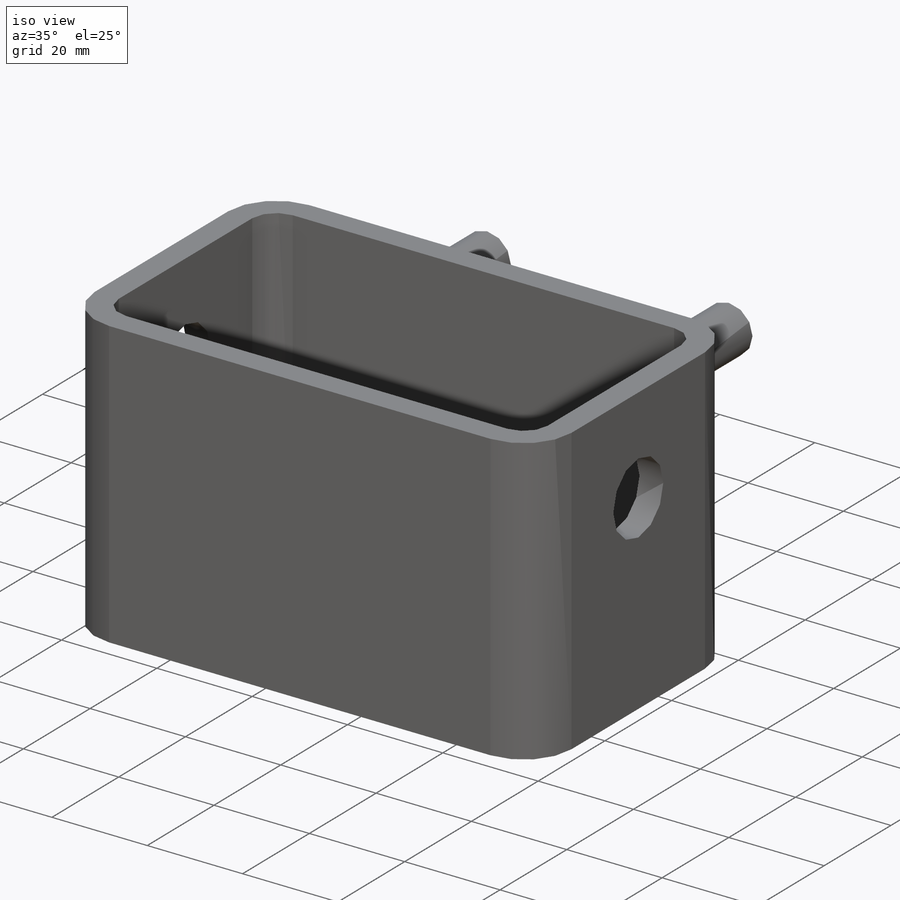
[diagram: iso view]
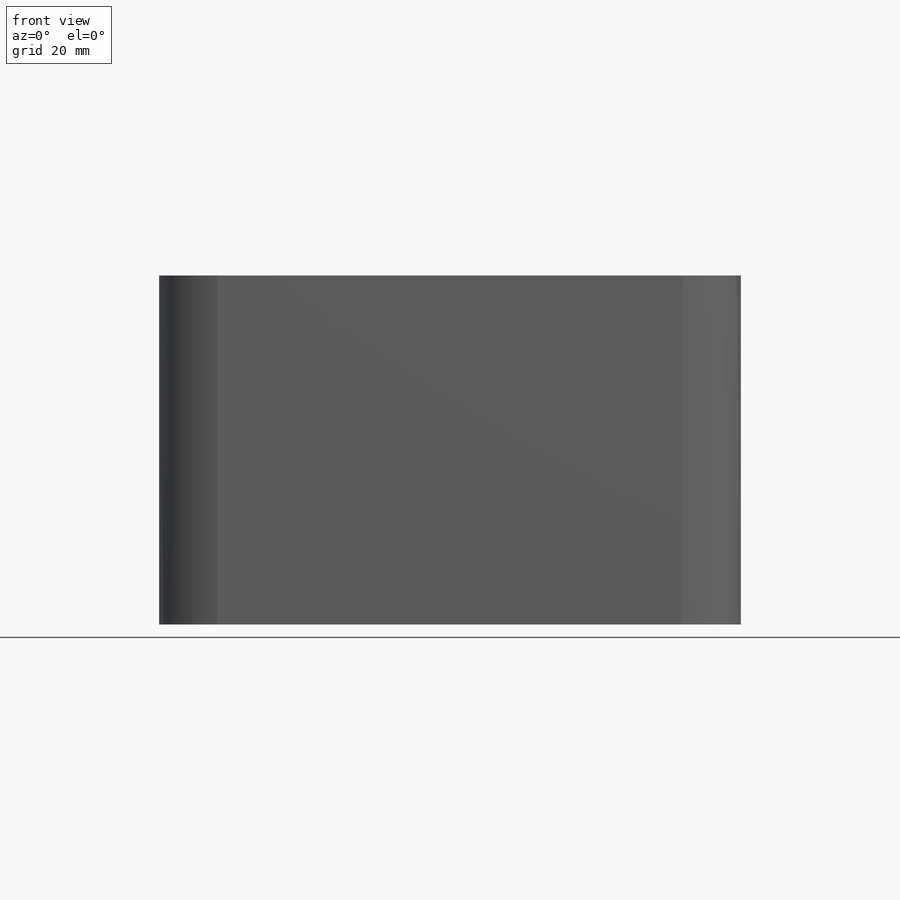
[diagram: front view]
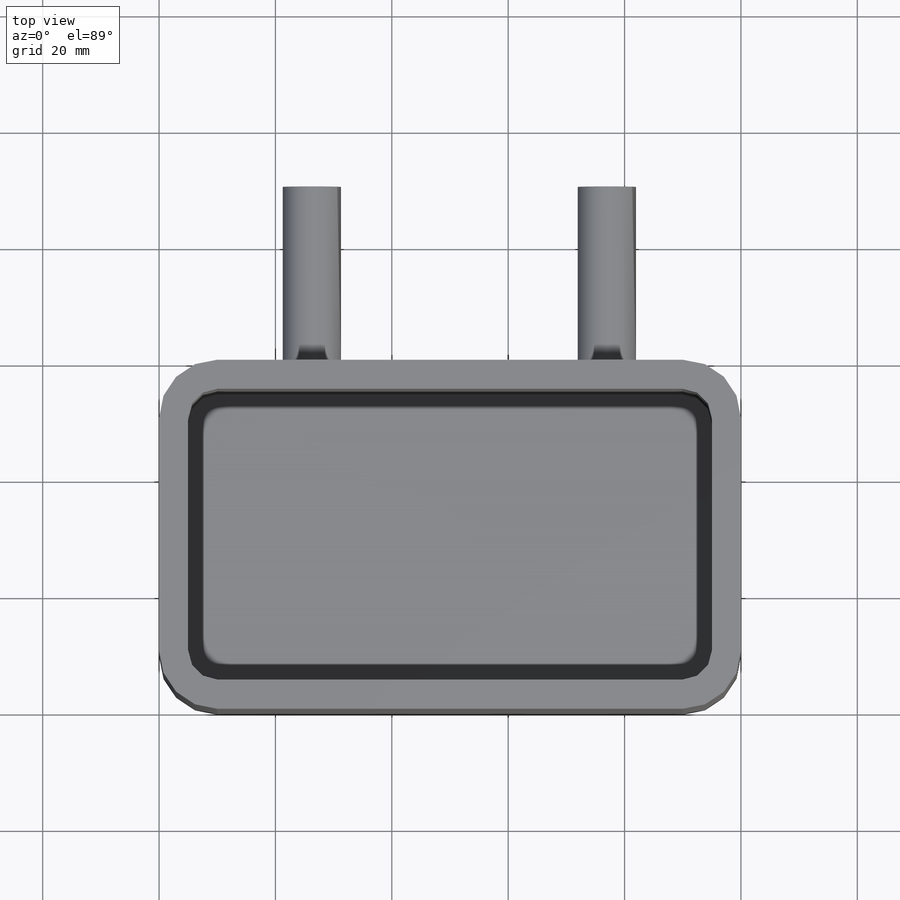
[diagram: top view]
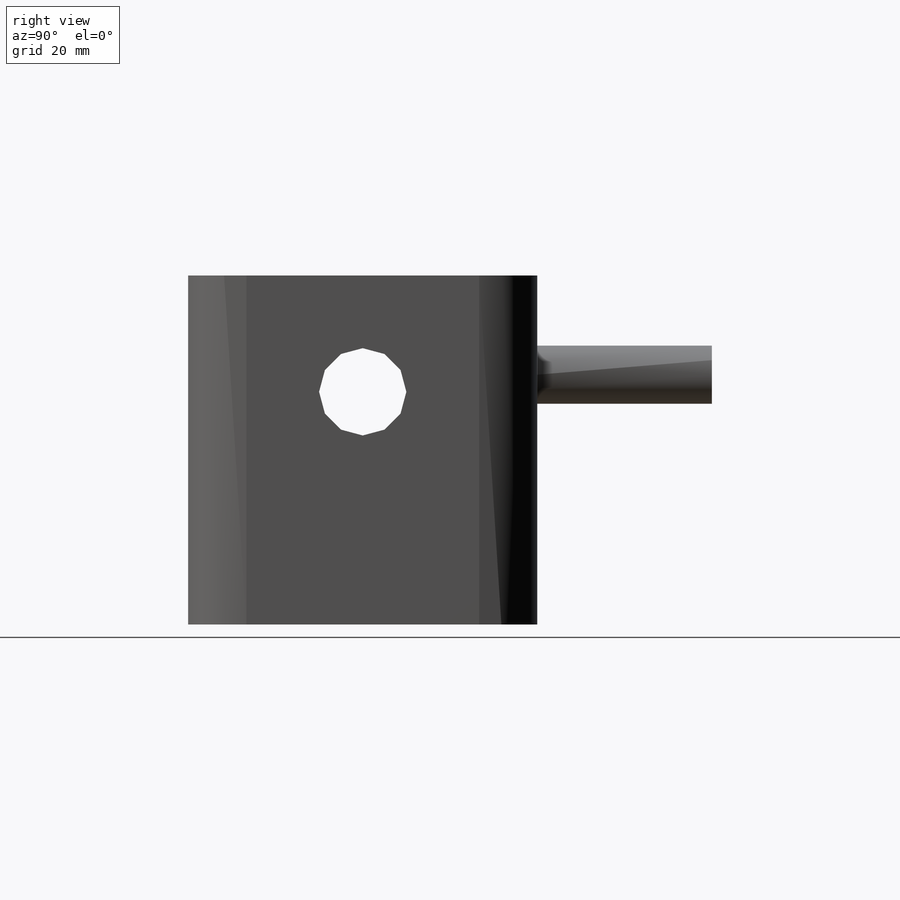
[diagram: right view]
SOLIDWORKS PART (.sldprt)
format: sldprt  version: not decoded by parser v0  size: 228,352 bytes
history: native  units: mm
features: plane x3, sketch x3, extrude x2, material x1, fillet x1, shell x1, cut_extrude x1 (+10 scaffold rows collapsed)
feature tree (22):
  scaffold x10  (default folders/planes/origin — collapsed)
  material  "Materiál <není určen>"
  plane  "Přední rovina"
  plane  "Horní rovina"
  plane  "Pravá rovina"
  sketch  "Skica1"  dims[D1=100.0mm D2=60.0mm]
  extrude  "Vysunout1"  Depth=60mm
  fillet  "Zaoblit1"  Radius=10mm
  shell  "Skořepina1"  Thickness=5mm
  sketch  "Skica2"  dims[D1=15.0mm D2=20.0mm]
  cut_extrude  "Odebrat vysunutím2"  [1 undecoded]
  sketch  "Skica3"  dims[D1=10.0mm D2=10.0mm]
  extrude  "Vysunout2"  Depth=30mm
decode coverage: 7 of 8 modeling features carry decoded parameters
note: 1 parameter value undecoded
note: suppression state not decoded; provenance and decode notes live in map.json
